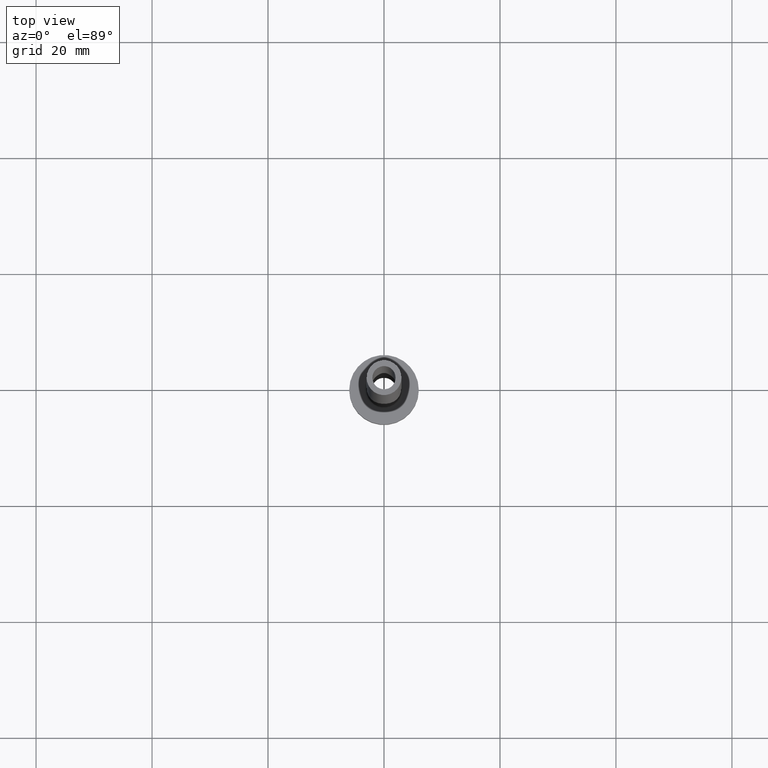
[diagram: clean part render]
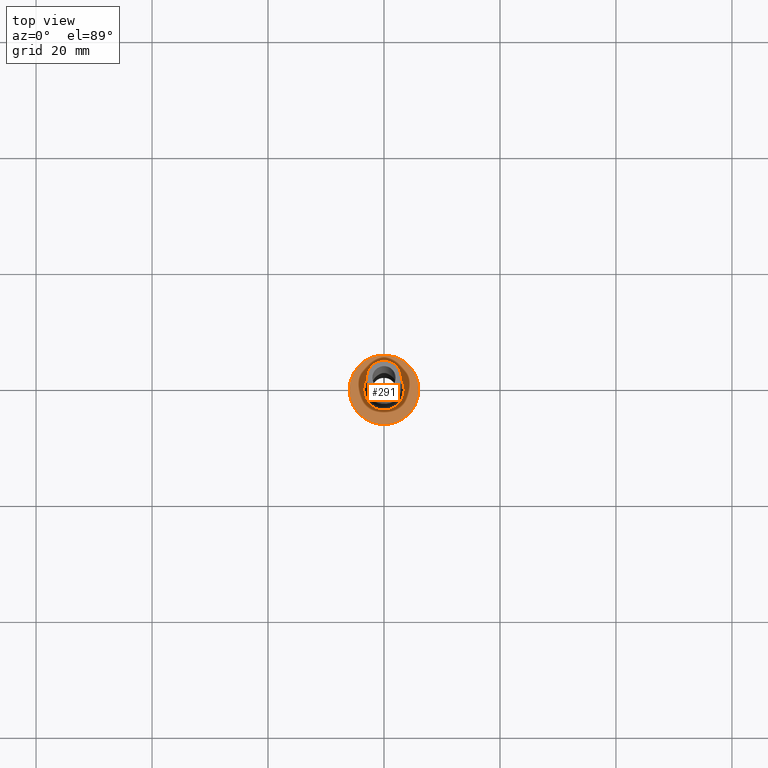
[diagram: same view with one face highlighted and labeled with its STEP entity id]
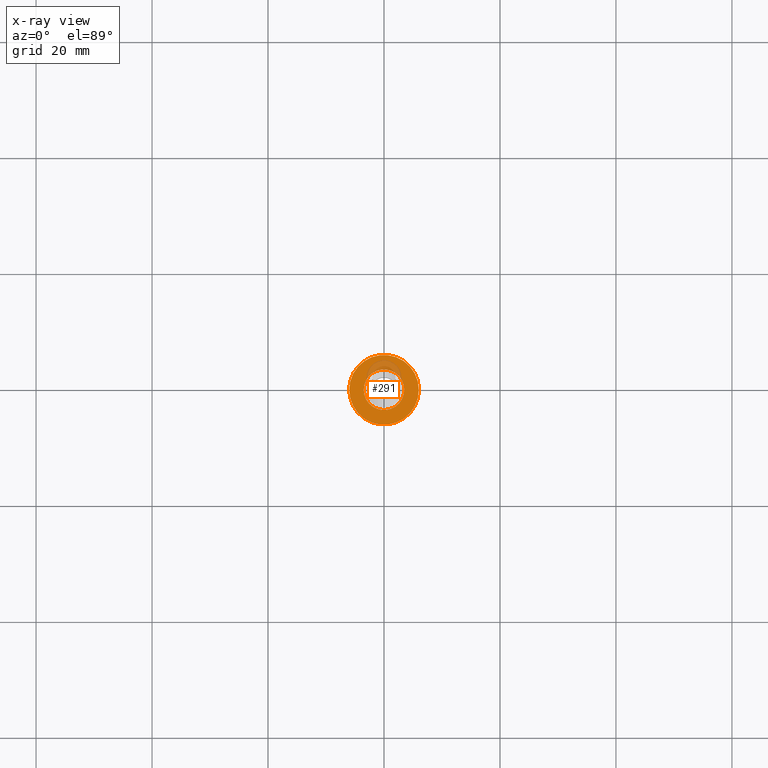
[diagram: x-ray of the same camera — body ghosted, the highlighted face saturated]
A machine part, top view. The second image highlights one B-rep face of the part: STEP entity #291.
The next image is the same camera in x-ray: the body ghosted, the highlighted face saturated — about 12% of this face is hidden behind the body in this view.
In plain terms, the highlighted planar face has unit normal (0, 0, 1).
Its self-contained STEP definition (entity closure, byte-faithful):
#17 = CARTESIAN_POINT ( 'NONE',  ( 3.500000000000000444, 0.000000000000000000, 5.000000000000002665 ) ) ;
#49 = DIRECTION ( 'NONE',  ( 1.000000000000000000, 0.000000000000000000, 0.000000000000000000 ) ) ;
#50 = EDGE_LOOP ( 'NONE', ( #372, #409 ) ) ;
#55 = EDGE_CURVE ( 'NONE', #337, #100, #198, .T. ) ;
#82 = DIRECTION ( 'NONE',  ( 1.000000000000000000, 0.000000000000000000, -0.000000000000000000 ) ) ;
#100 = VERTEX_POINT ( 'NONE', #358 ) ;
#104 = CIRCLE ( 'NONE', #194, 6.000000000000000888 ) ;
#116 = DIRECTION ( 'NONE',  ( 0.000000000000000000, 0.000000000000000000, 1.000000000000000000 ) ) ;
#123 = CIRCLE ( 'NONE', #269, 3.500000000000000444 ) ;
#124 = FACE_BOUND ( 'NONE', #250, .T. ) ;
#149 = CARTESIAN_POINT ( 'NONE',  ( 0.000000000000000000, 0.000000000000000000, 5.000000000000000000 ) ) ;
#152 = AXIS2_PLACEMENT_3D ( 'NONE', #149, #116, #82 ) ;
#157 = VERTEX_POINT ( 'NONE', #183 ) ;
#162 = AXIS2_PLACEMENT_3D ( 'NONE', #311, #422, #460 ) ;
#171 = DIRECTION ( 'NONE',  ( 1.000000000000000000, 0.000000000000000000, 0.000000000000000000 ) ) ;
#183 = CARTESIAN_POINT ( 'NONE',  ( -3.500000000000000444, 4.286263797015737088E-16, 5.000000000000002665 ) ) ;
#185 = CARTESIAN_POINT ( 'NONE',  ( 0.000000000000000000, 0.000000000000000000, 5.000000000000000000 ) ) ;
#194 = AXIS2_PLACEMENT_3D ( 'NONE', #185, #270, #49 ) ;
#198 = CIRCLE ( 'NONE', #457, 6.000000000000000888 ) ;
#203 = EDGE_CURVE ( 'NONE', #157, #271, #123, .T. ) ;
#217 = CIRCLE ( 'NONE', #162, 3.500000000000000444 ) ;
#221 = CARTESIAN_POINT ( 'NONE',  ( 0.000000000000000000, 0.000000000000000000, 5.000000000000000000 ) ) ;
#250 = EDGE_LOOP ( 'NONE', ( #310, #376 ) ) ;
#261 = CARTESIAN_POINT ( 'NONE',  ( -6.000000000000000888, 0.000000000000000000, 5.000000000000000000 ) ) ;
#269 = AXIS2_PLACEMENT_3D ( 'NONE', #221, #285, #392 ) ;
#270 = DIRECTION ( 'NONE',  ( 0.000000000000000000, 0.000000000000000000, 1.000000000000000000 ) ) ;
#271 = VERTEX_POINT ( 'NONE', #17 ) ;
#285 = DIRECTION ( 'NONE',  ( -0.000000000000000000, -0.000000000000000000, -1.000000000000000000 ) ) ;
#291 = ADVANCED_FACE ( 'NONE', ( #124, #336 ), #410, .T. ) ;
#310 = ORIENTED_EDGE ( 'NONE', *, *, #453, .T. ) ;
#311 = CARTESIAN_POINT ( 'NONE',  ( 0.000000000000000000, 0.000000000000000000, 5.000000000000000000 ) ) ;
#312 = DIRECTION ( 'NONE',  ( 0.000000000000000000, 0.000000000000000000, 1.000000000000000000 ) ) ;
#320 = EDGE_CURVE ( 'NONE', #100, #337, #104, .T. ) ;
#336 = FACE_OUTER_BOUND ( 'NONE', #50, .T. ) ;
#337 = VERTEX_POINT ( 'NONE', #261 ) ;
#358 = CARTESIAN_POINT ( 'NONE',  ( 6.000000000000000888, 7.347880794884120722E-16, 5.000000000000000000 ) ) ;
#372 = ORIENTED_EDGE ( 'NONE', *, *, #55, .T. ) ;
#376 = ORIENTED_EDGE ( 'NONE', *, *, #203, .T. ) ;
#392 = DIRECTION ( 'NONE',  ( 1.000000000000000000, 0.000000000000000000, 0.000000000000000000 ) ) ;
#409 = ORIENTED_EDGE ( 'NONE', *, *, #320, .T. ) ;
#410 = PLANE ( 'NONE',  #152 ) ;
#413 = CARTESIAN_POINT ( 'NONE',  ( 0.000000000000000000, 0.000000000000000000, 5.000000000000000000 ) ) ;
#422 = DIRECTION ( 'NONE',  ( -0.000000000000000000, -0.000000000000000000, -1.000000000000000000 ) ) ;
#453 = EDGE_CURVE ( 'NONE', #271, #157, #217, .T. ) ;
#457 = AXIS2_PLACEMENT_3D ( 'NONE', #413, #312, #171 ) ;
#460 = DIRECTION ( 'NONE',  ( 1.000000000000000000, 0.000000000000000000, 0.000000000000000000 ) ) ;